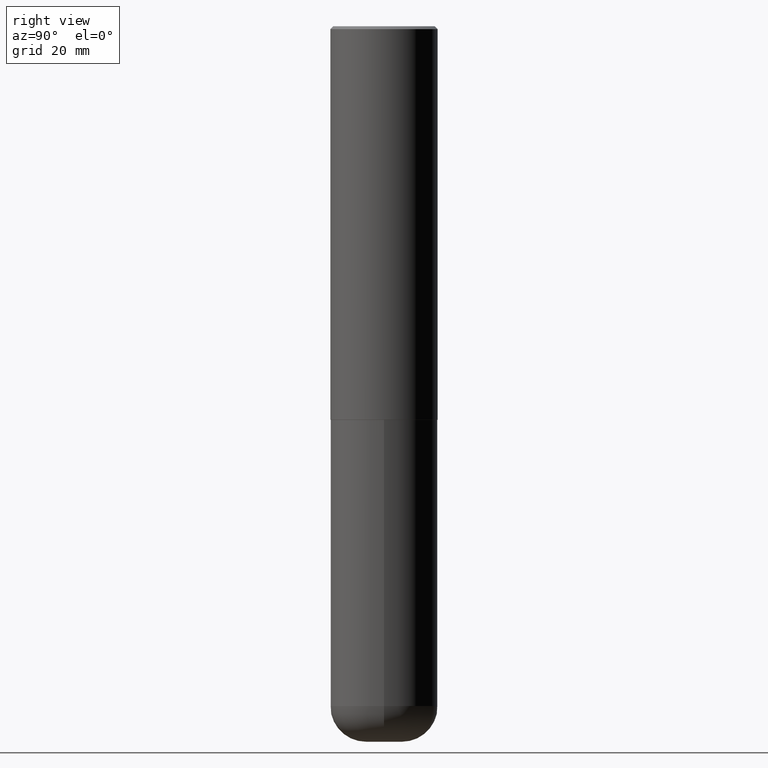
[diagram: clean part render]
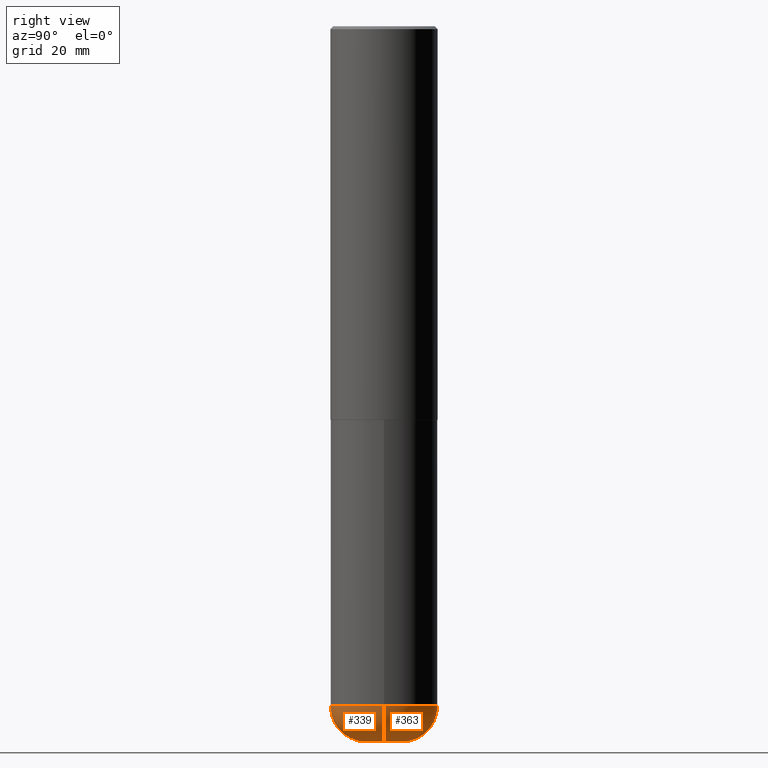
[diagram: same view with one multi-face feature highlighted, each face labeled with its STEP entity id]
A machine part, right view. The highlighted faces form ONE feature: a constant-radius fillet chain: 2 tangent blend faces with common blend radius 6.35 mm. The faces share edges in the B-rep.
Their STEP definitions:
[1] entity #363 (Torus):
#7 = CIRCLE ( 'NONE', #43, 0.1250000000000000555 ) ;
#24 = CARTESIAN_POINT ( 'NONE',  ( 1.222734403092568523E-28, -1.745740669421573304E-14, -5.000000000000000888 ) ) ;
#32 = DIRECTION ( 'NONE',  ( -6.982962677686266711E-15, -1.000000000000000000, 3.491481338843145583E-15 ) ) ;
#43 = AXIS2_PLACEMENT_3D ( 'NONE', #24, #88, #412 ) ;
#49 = CIRCLE ( 'NONE', #119, 0.2500000000000003886 ) ;
#58 = CARTESIAN_POINT ( 'NONE',  ( 0.1250000000000000278, -1.745740669421572673E-14, -4.750000000000000000 ) ) ;
#60 = CARTESIAN_POINT ( 'NONE',  ( -0.3750000000000002220, -1.392000110040456296E-14, -4.750000000000000000 ) ) ;
#64 = AXIS2_PLACEMENT_3D ( 'NONE', #72, #100, #141 ) ;
#72 = CARTESIAN_POINT ( 'NONE',  ( 1.161597682937940108E-28, -1.658453635950494339E-14, -4.750000000000000000 ) ) ;
#73 = ORIENTED_EDGE ( 'NONE', *, *, #106, .F. ) ;
#85 = DIRECTION ( 'NONE',  ( 7.105427357601001859E-15, 1.000000000000000000, -3.491481338843145583E-15 ) ) ;
#88 = DIRECTION ( 'NONE',  ( -2.445468806185136597E-29, 3.491481338843145583E-15, 1.000000000000000000 ) ) ;
#92 = CARTESIAN_POINT ( 'NONE',  ( 1.161597682937940108E-28, -1.658453635950494339E-14, -4.750000000000000000 ) ) ;
#95 = CARTESIAN_POINT ( 'NONE',  ( -0.1250000000000000278, -1.569635793980481500E-14, -4.750000000000000000 ) ) ;
#100 = DIRECTION ( 'NONE',  ( -2.445468806185136597E-29, 3.491481338843145583E-15, 1.000000000000000000 ) ) ;
#106 = EDGE_CURVE ( 'NONE', #245, #117, #107, .T. ) ;
#107 = CIRCLE ( 'NONE', #311, 0.3749999999999999445 ) ;
#117 = VERTEX_POINT ( 'NONE', #60 ) ;
#119 = AXIS2_PLACEMENT_3D ( 'NONE', #95, #85, #229 ) ;
#120 = TOROIDAL_SURFACE ( 'NONE', #64, 0.1250000000000000278, 0.2500000000000003886 ) ;
#141 = DIRECTION ( 'NONE',  ( 1.000000000000000000, -6.982962677686270655E-15, 4.883557194083114583E-29 ) ) ;
#165 = AXIS2_PLACEMENT_3D ( 'NONE', #58, #32, #389 ) ;
#172 = CIRCLE ( 'NONE', #165, 0.2500000000000003886 ) ;
#182 = EDGE_CURVE ( 'NONE', #204, #117, #49, .T. ) ;
#204 = VERTEX_POINT ( 'NONE', #323 ) ;
#214 = ORIENTED_EDGE ( 'NONE', *, *, #226, .F. ) ;
#226 = EDGE_CURVE ( 'NONE', #401, #245, #172, .T. ) ;
#229 = DIRECTION ( 'NONE',  ( -1.000000000000000000, 7.105427357601000281E-15, 0.000000000000000000 ) ) ;
#245 = VERTEX_POINT ( 'NONE', #350 ) ;
#262 = EDGE_CURVE ( 'NONE', #401, #204, #7, .T. ) ;
#271 = CARTESIAN_POINT ( 'NONE',  ( 0.1250000000000000555, -1.833027702892651638E-14, -5.000000000000000888 ) ) ;
#287 = DIRECTION ( 'NONE',  ( 1.000000000000000000, -6.982962677686269077E-15, 0.000000000000000000 ) ) ;
#293 = DIRECTION ( 'NONE',  ( -2.445468806185136597E-29, 3.491481338843145583E-15, 1.000000000000000000 ) ) ;
#302 = ORIENTED_EDGE ( 'NONE', *, *, #262, .T. ) ;
#306 = EDGE_LOOP ( 'NONE', ( #302, #330, #73, #214 ) ) ;
#311 = AXIS2_PLACEMENT_3D ( 'NONE', #92, #293, #287 ) ;
#323 = CARTESIAN_POINT ( 'NONE',  ( -0.1250000000000000555, -1.524461468746008302E-14, -5.000000000000000888 ) ) ;
#330 = ORIENTED_EDGE ( 'NONE', *, *, #182, .T. ) ;
#350 = CARTESIAN_POINT ( 'NONE',  ( 0.3750000000000002220, -1.920314736363729341E-14, -4.750000000000000000 ) ) ;
#363 = ADVANCED_FACE ( 'NONE', ( #366 ), #120, .T. ) ;
#366 = FACE_OUTER_BOUND ( 'NONE', #306, .T. ) ;
#389 = DIRECTION ( 'NONE',  ( 1.000000000000000000, -6.982962677686259611E-15, 0.000000000000000000 ) ) ;
#401 = VERTEX_POINT ( 'NONE', #271 ) ;
#412 = DIRECTION ( 'NONE',  ( 1.000000000000000000, -6.982962677686275388E-15, 0.000000000000000000 ) ) ;
[2] entity #339 (Torus):
#32 = DIRECTION ( 'NONE',  ( -6.982962677686266711E-15, -1.000000000000000000, 3.491481338843145583E-15 ) ) ;
#38 = CARTESIAN_POINT ( 'NONE',  ( 1.161597682937940108E-28, -1.658453635950494339E-14, -4.750000000000000000 ) ) ;
#49 = CIRCLE ( 'NONE', #119, 0.2500000000000003886 ) ;
#58 = CARTESIAN_POINT ( 'NONE',  ( 0.1250000000000000278, -1.745740669421572673E-14, -4.750000000000000000 ) ) ;
#60 = CARTESIAN_POINT ( 'NONE',  ( -0.3750000000000002220, -1.392000110040456296E-14, -4.750000000000000000 ) ) ;
#85 = DIRECTION ( 'NONE',  ( 7.105427357601001859E-15, 1.000000000000000000, -3.491481338843145583E-15 ) ) ;
#95 = CARTESIAN_POINT ( 'NONE',  ( -0.1250000000000000278, -1.569635793980481500E-14, -4.750000000000000000 ) ) ;
#98 = AXIS2_PLACEMENT_3D ( 'NONE', #253, #318, #224 ) ;
#109 = ORIENTED_EDGE ( 'NONE', *, *, #276, .T. ) ;
#117 = VERTEX_POINT ( 'NONE', #60 ) ;
#119 = AXIS2_PLACEMENT_3D ( 'NONE', #95, #85, #229 ) ;
#131 = EDGE_CURVE ( 'NONE', #117, #245, #188, .T. ) ;
#135 = DIRECTION ( 'NONE',  ( -2.445468806185136597E-29, 3.491481338843145583E-15, 1.000000000000000000 ) ) ;
#143 = EDGE_LOOP ( 'NONE', ( #400, #109, #145, #307 ) ) ;
#145 = ORIENTED_EDGE ( 'NONE', *, *, #226, .T. ) ;
#164 = CARTESIAN_POINT ( 'NONE',  ( 1.161597682937940108E-28, -1.658453635950494339E-14, -4.750000000000000000 ) ) ;
#165 = AXIS2_PLACEMENT_3D ( 'NONE', #58, #32, #389 ) ;
#172 = CIRCLE ( 'NONE', #165, 0.2500000000000003886 ) ;
#182 = EDGE_CURVE ( 'NONE', #204, #117, #49, .T. ) ;
#188 = CIRCLE ( 'NONE', #384, 0.3749999999999999445 ) ;
#204 = VERTEX_POINT ( 'NONE', #323 ) ;
#223 = CIRCLE ( 'NONE', #98, 0.1250000000000000555 ) ;
#224 = DIRECTION ( 'NONE',  ( 1.000000000000000000, -6.982962677686275388E-15, 0.000000000000000000 ) ) ;
#226 = EDGE_CURVE ( 'NONE', #401, #245, #172, .T. ) ;
#229 = DIRECTION ( 'NONE',  ( -1.000000000000000000, 7.105427357601000281E-15, 0.000000000000000000 ) ) ;
#245 = VERTEX_POINT ( 'NONE', #350 ) ;
#253 = CARTESIAN_POINT ( 'NONE',  ( 1.222734403092568523E-28, -1.745740669421573304E-14, -5.000000000000000888 ) ) ;
#261 = DIRECTION ( 'NONE',  ( 1.000000000000000000, -6.982962677686269077E-15, 0.000000000000000000 ) ) ;
#271 = CARTESIAN_POINT ( 'NONE',  ( 0.1250000000000000555, -1.833027702892651638E-14, -5.000000000000000888 ) ) ;
#276 = EDGE_CURVE ( 'NONE', #204, #401, #223, .T. ) ;
#305 = AXIS2_PLACEMENT_3D ( 'NONE', #38, #135, #362 ) ;
#307 = ORIENTED_EDGE ( 'NONE', *, *, #131, .F. ) ;
#318 = DIRECTION ( 'NONE',  ( -2.445468806185136597E-29, 3.491481338843145583E-15, 1.000000000000000000 ) ) ;
#323 = CARTESIAN_POINT ( 'NONE',  ( -0.1250000000000000555, -1.524461468746008302E-14, -5.000000000000000888 ) ) ;
#332 = FACE_OUTER_BOUND ( 'NONE', #143, .T. ) ;
#339 = ADVANCED_FACE ( 'NONE', ( #332 ), #356, .T. ) ;
#350 = CARTESIAN_POINT ( 'NONE',  ( 0.3750000000000002220, -1.920314736363729341E-14, -4.750000000000000000 ) ) ;
#356 = TOROIDAL_SURFACE ( 'NONE', #305, 0.1250000000000000278, 0.2500000000000003886 ) ;
#362 = DIRECTION ( 'NONE',  ( 1.000000000000000000, -6.982962677686270655E-15, 4.883557194083114583E-29 ) ) ;
#382 = DIRECTION ( 'NONE',  ( -2.445468806185136597E-29, 3.491481338843145583E-15, 1.000000000000000000 ) ) ;
#384 = AXIS2_PLACEMENT_3D ( 'NONE', #164, #382, #261 ) ;
#389 = DIRECTION ( 'NONE',  ( 1.000000000000000000, -6.982962677686259611E-15, 0.000000000000000000 ) ) ;
#400 = ORIENTED_EDGE ( 'NONE', *, *, #182, .F. ) ;
#401 = VERTEX_POINT ( 'NONE', #271 ) ;